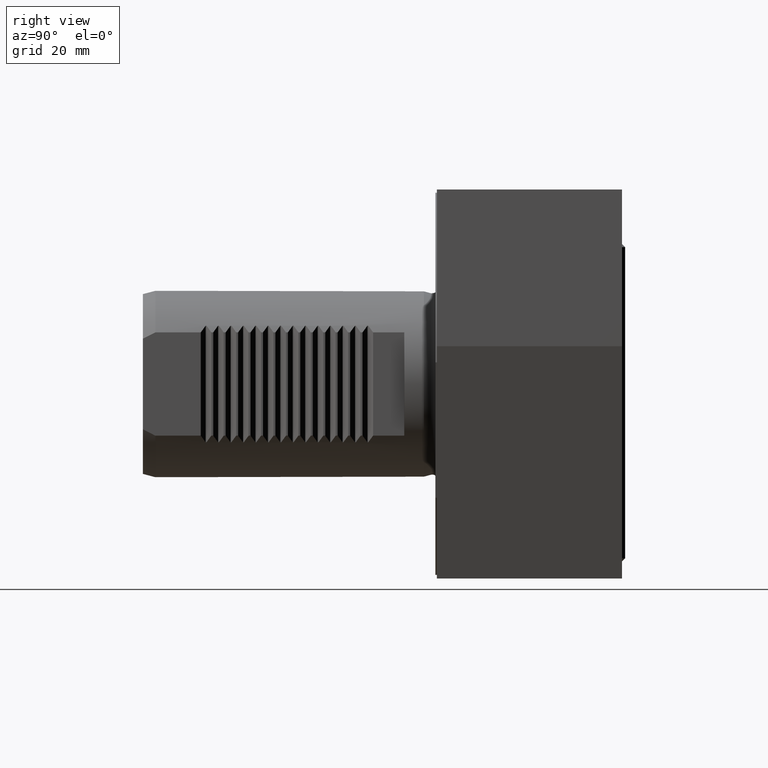
[diagram: clean part render]
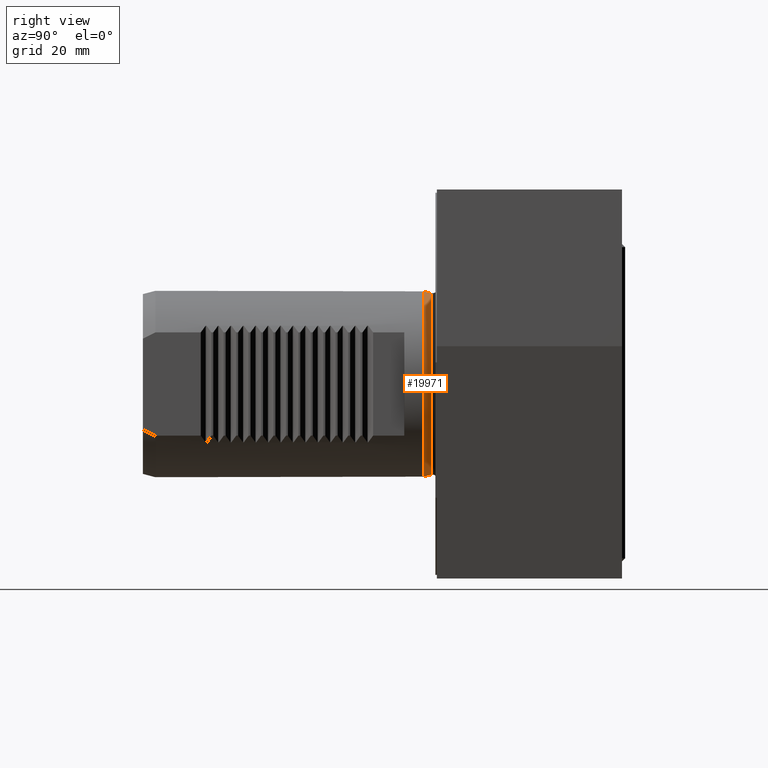
[diagram: same view with one face highlighted and labeled with its STEP entity id]
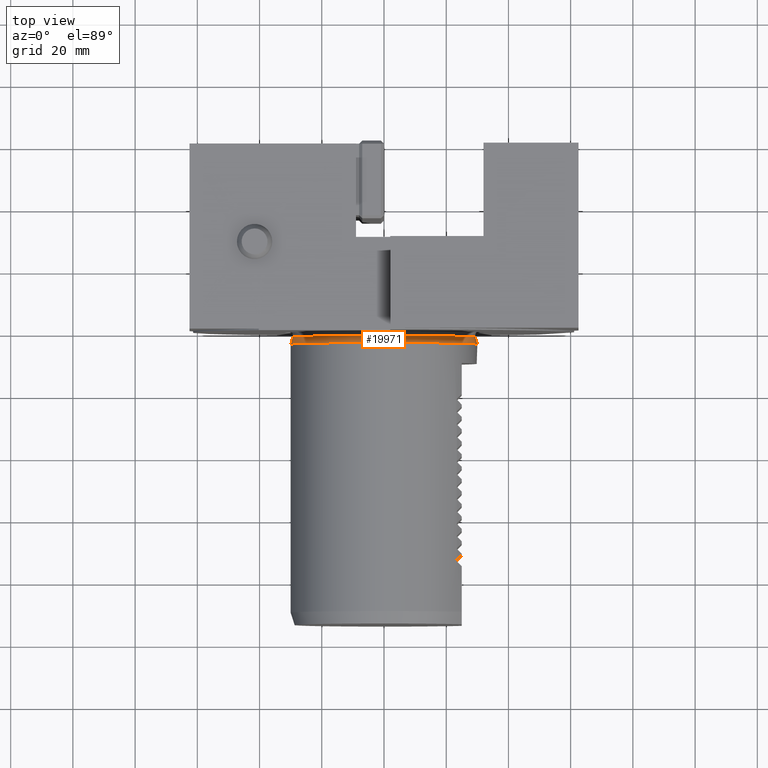
[diagram: same view with one face highlighted and labeled with its STEP entity id]
A machine part, right view. The second image highlights one B-rep face of the part: STEP entity #19971.
A second angle (top view) of the same face is appended — the face is thin or edge-on in the first view.
In plain terms, the highlighted conical surface has half-angle 15 deg.
Its self-contained STEP definition (entity closure, byte-faithful):
#638 = CARTESIAN_POINT ( 'NONE',  ( -29.39088900845310803, -1.426766832098291582, 0.000000000000000000 ) ) ;
#3796 = CONICAL_SURFACE ( 'NONE', #12711, 29.39088900845310803, 0.2617993877991426355 ) ;
#4422 = DIRECTION ( 'NONE',  ( 1.000000000000000000, 1.328006042901675480E-16, 0.000000000000000000 ) ) ;
#4793 = DIRECTION ( 'NONE',  ( -1.295371175675670281E-16, 1.000000000000000000, -0.000000000000000000 ) ) ;
#5600 = AXIS2_PLACEMENT_3D ( 'NONE', #18887, #4793, #11284 ) ;
#5663 = EDGE_LOOP ( 'NONE', ( #8210 ) ) ;
#6079 = FACE_OUTER_BOUND ( 'NONE', #5663, .T. ) ;
#6759 = EDGE_LOOP ( 'NONE', ( #14449 ) ) ;
#6826 = CIRCLE ( 'NONE', #18325, 29.39088900845310803 ) ;
#7874 = DIRECTION ( 'NONE',  ( -1.000000000000000000, -1.328006042901675480E-16, 0.000000000000000000 ) ) ;
#8210 = ORIENTED_EDGE ( 'NONE', *, *, #15349, .T. ) ;
#10609 = DIRECTION ( 'NONE',  ( 1.295371175675670281E-16, -1.000000000000000000, 0.000000000000000000 ) ) ;
#10998 = FACE_BOUND ( 'NONE', #6759, .T. ) ;
#11284 = DIRECTION ( 'NONE',  ( -1.000000000000000000, -1.301042606982605321E-16, 0.000000000000000000 ) ) ;
#11699 = CARTESIAN_POINT ( 'NONE',  ( -30.00000000000000000, -3.700000000000001066, 0.000000000000000000 ) ) ;
#12570 = CARTESIAN_POINT ( 'NONE',  ( 1.848192628710210528E-16, -1.426766832098287807, 0.000000000000000000 ) ) ;
#12711 = AXIS2_PLACEMENT_3D ( 'NONE', #12570, #10609, #4422 ) ;
#13730 = EDGE_CURVE ( 'NONE', #14791, #14791, #6826, .T. ) ;
#13966 = CARTESIAN_POINT ( 'NONE',  ( 1.848192628710210528E-16, -1.426766832098287807, 0.000000000000000000 ) ) ;
#14449 = ORIENTED_EDGE ( 'NONE', *, *, #13730, .F. ) ;
#14461 = CIRCLE ( 'NONE', #5600, 30.00000000000000000 ) ;
#14791 = VERTEX_POINT ( 'NONE', #638 ) ;
#14887 = VERTEX_POINT ( 'NONE', #11699 ) ;
#15349 = EDGE_CURVE ( 'NONE', #14887, #14887, #14461, .T. ) ;
#15691 = DIRECTION ( 'NONE',  ( -1.295371175675670281E-16, 1.000000000000000000, -0.000000000000000000 ) ) ;
#18325 = AXIS2_PLACEMENT_3D ( 'NONE', #13966, #15691, #7874 ) ;
#18887 = CARTESIAN_POINT ( 'NONE',  ( 4.792873349999975651E-16, -3.699999999999997069, 0.000000000000000000 ) ) ;
#19971 = ADVANCED_FACE ( 'Defeature completata2_11', ( #6079, #10998 ), #3796, .T. ) ;